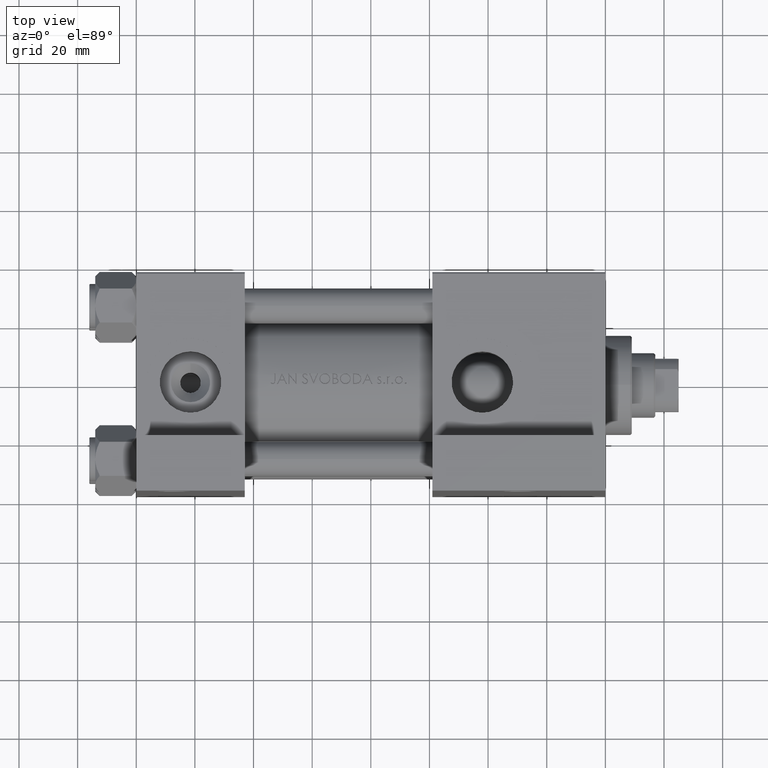
[diagram: clean part render]
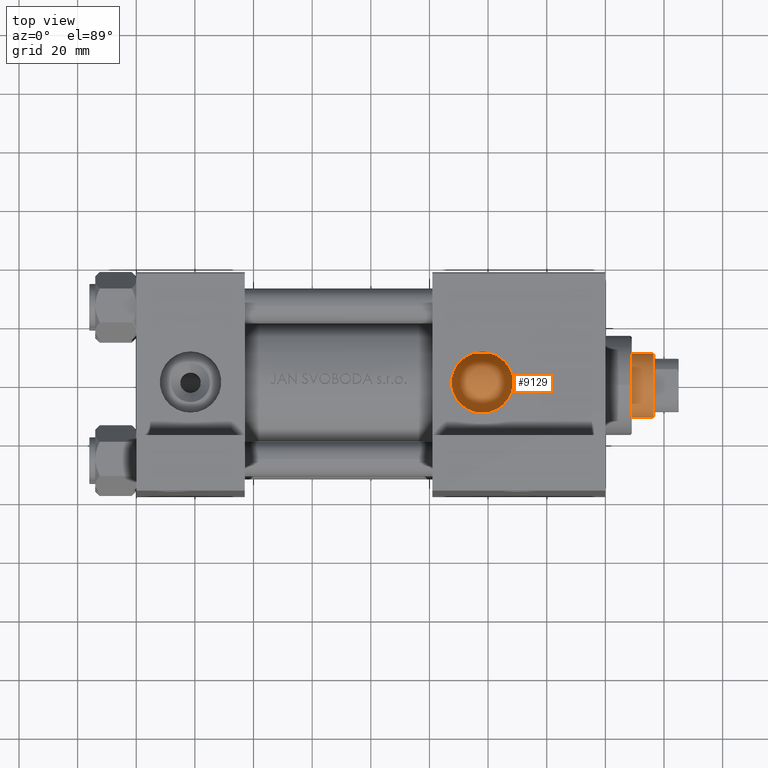
[diagram: same view with one face highlighted and labeled with its STEP entity id]
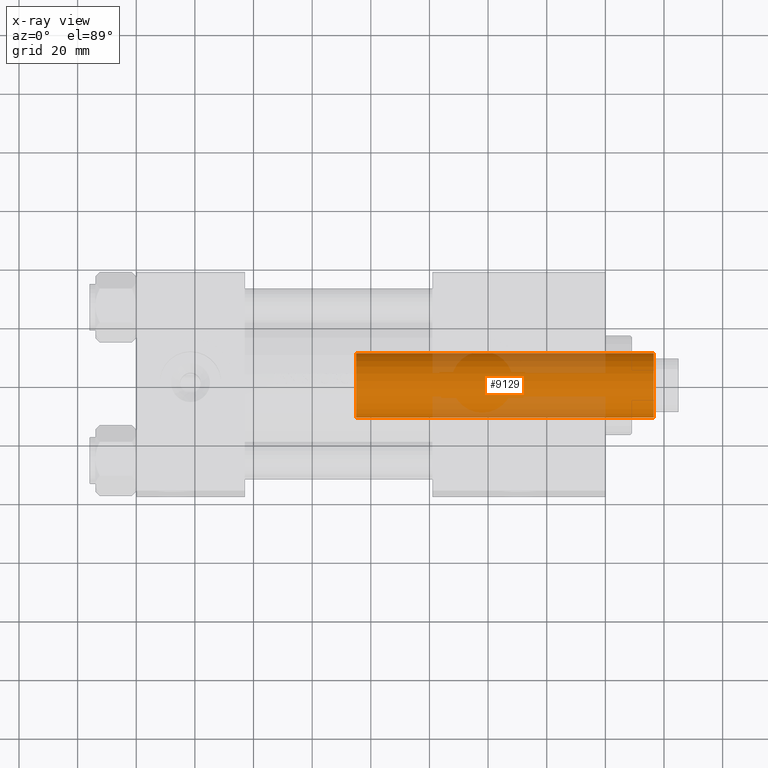
[diagram: x-ray of the same camera — body ghosted, the highlighted face saturated]
A machine part, top view. The second image highlights one B-rep face of the part: STEP entity #9129.
The next image is the same camera in x-ray: the body ghosted, the highlighted face saturated — about 29% of this face is hidden behind the body in this view.
In plain terms, the highlighted cylindrical surface (edge-blend (fillet) strip) has radius 11 mm, axis along (-1, 0, 0).
Its self-contained STEP definition (entity closure, byte-faithful):
#993 = EDGE_CURVE ( 'NONE', #46150, #3768, #40134, .T. ) ;
#1591 = ORIENTED_EDGE ( 'NONE', *, *, #19719, .T. ) ;
#1881 = ORIENTED_EDGE ( 'NONE', *, *, #39674, .T. ) ;
#3768 = VERTEX_POINT ( 'NONE', #28663 ) ;
#6336 = VECTOR ( 'NONE', #24718, 1000.000000000000000 ) ;
#8567 = VERTEX_POINT ( 'NONE', #36193 ) ;
#9129 = ADVANCED_FACE ( 'NONE', ( #20389 ), #12681, .T. ) ;
#10116 = VERTEX_POINT ( 'NONE', #37146 ) ;
#12681 = CYLINDRICAL_SURFACE ( 'NONE', #15247, 11.00000000000000000 ) ;
#14185 = CIRCLE ( 'NONE', #41243, 11.00000000000000000 ) ;
#15247 = AXIS2_PLACEMENT_3D ( 'NONE', #46054, #34842, #27887 ) ;
#15838 = AXIS2_PLACEMENT_3D ( 'NONE', #33214, #48400, #25264 ) ;
#17197 = CARTESIAN_POINT ( 'NONE',  ( -11.00000000000000000, 0.000000000000000000, 139.9999999999999716 ) ) ;
#17645 = EDGE_LOOP ( 'NONE', ( #42843, #22548, #1591, #1881 ) ) ;
#19719 = EDGE_CURVE ( 'NONE', #10116, #8567, #24444, .T. ) ;
#20389 = FACE_OUTER_BOUND ( 'NONE', #17645, .T. ) ;
#21680 = DIRECTION ( 'NONE',  ( -0.000000000000000000, -0.000000000000000000, -1.000000000000000000 ) ) ;
#22548 = ORIENTED_EDGE ( 'NONE', *, *, #40020, .T. ) ;
#24444 = LINE ( 'NONE', #17197, #33277 ) ;
#24718 = DIRECTION ( 'NONE',  ( -0.000000000000000000, -0.000000000000000000, -1.000000000000000000 ) ) ;
#25264 = DIRECTION ( 'NONE',  ( 1.000000000000000000, 0.000000000000000000, 0.000000000000000000 ) ) ;
#27887 = DIRECTION ( 'NONE',  ( -1.000000000000000000, 0.000000000000000000, 0.000000000000000000 ) ) ;
#28663 = CARTESIAN_POINT ( 'NONE',  ( 11.00000000000000000, 1.347111479062088405E-15, 38.00000000000000000 ) ) ;
#30049 = DIRECTION ( 'NONE',  ( 1.000000000000000000, 0.000000000000000000, 0.000000000000000000 ) ) ;
#33214 = CARTESIAN_POINT ( 'NONE',  ( 0.000000000000000000, 0.000000000000000000, 139.4999999999999716 ) ) ;
#33277 = VECTOR ( 'NONE', #21680, 1000.000000000000000 ) ;
#33772 = DIRECTION ( 'NONE',  ( 0.000000000000000000, 0.000000000000000000, 1.000000000000000000 ) ) ;
#34842 = DIRECTION ( 'NONE',  ( -0.000000000000000000, -0.000000000000000000, -1.000000000000000000 ) ) ;
#36193 = CARTESIAN_POINT ( 'NONE',  ( -11.00000000000000000, 0.000000000000000000, 38.00000000000000000 ) ) ;
#36897 = CARTESIAN_POINT ( 'NONE',  ( 11.00000000000000000, 1.347111479062088405E-15, 139.9999999999999716 ) ) ;
#37146 = CARTESIAN_POINT ( 'NONE',  ( -11.00000000000000000, 0.000000000000000000, 139.4999999999999716 ) ) ;
#39674 = EDGE_CURVE ( 'NONE', #8567, #3768, #14185, .T. ) ;
#40020 = EDGE_CURVE ( 'NONE', #46150, #10116, #44437, .T. ) ;
#40134 = LINE ( 'NONE', #36897, #6336 ) ;
#41238 = CARTESIAN_POINT ( 'NONE',  ( 0.000000000000000000, 0.000000000000000000, 38.00000000000000000 ) ) ;
#41243 = AXIS2_PLACEMENT_3D ( 'NONE', #41238, #33772, #30049 ) ;
#42843 = ORIENTED_EDGE ( 'NONE', *, *, #993, .F. ) ;
#44437 = CIRCLE ( 'NONE', #15838, 11.00000000000000000 ) ;
#46054 = CARTESIAN_POINT ( 'NONE',  ( 0.000000000000000000, 0.000000000000000000, 139.9999999999999716 ) ) ;
#46150 = VERTEX_POINT ( 'NONE', #47406 ) ;
#47406 = CARTESIAN_POINT ( 'NONE',  ( 11.00000000000000000, 1.347111479062088405E-15, 139.4999999999999716 ) ) ;
#48400 = DIRECTION ( 'NONE',  ( 0.000000000000000000, 0.000000000000000000, -1.000000000000000000 ) ) ;